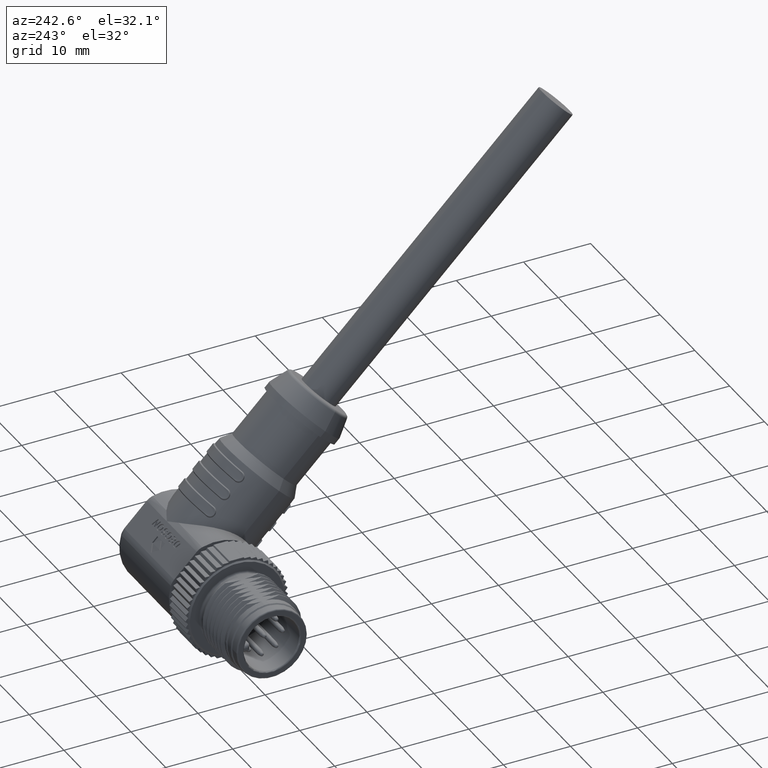
[diagram: clean part render]
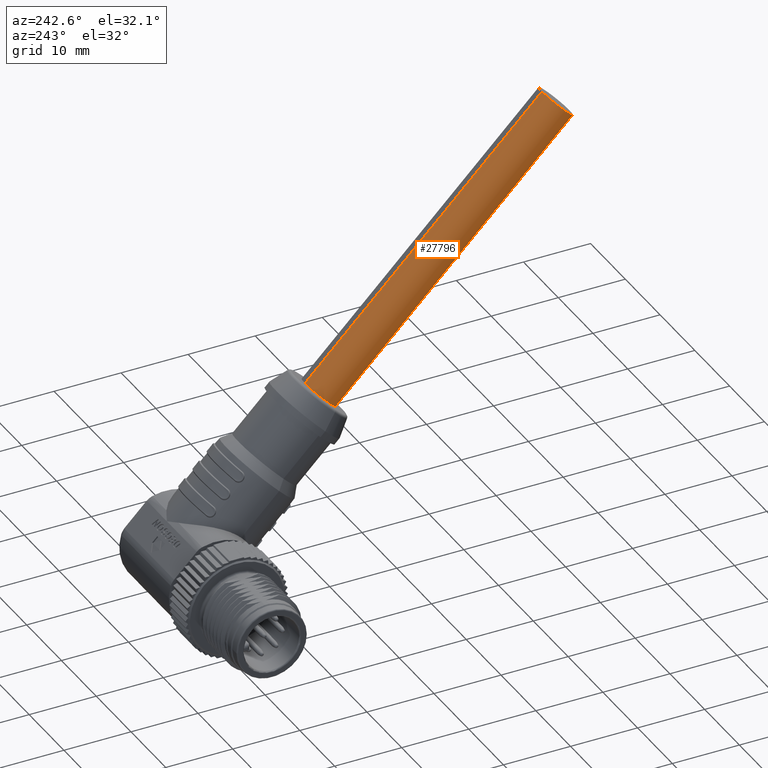
[diagram: same view with one face highlighted and labeled with its STEP entity id]
A machine part, auxiliary view. The second image highlights one B-rep face of the part: STEP entity #27796.
In plain terms, the highlighted cylindrical surface (edge-blend (fillet) strip) has radius 2.9 mm, axis along (0, -0.7071, 0.7071).
Its self-contained STEP definition (entity closure, byte-faithful):
#6009=CARTESIAN_POINT('',(2.28E1,-1.979898987322E1,1.979898987322E1));
#6010=DIRECTION('',(0.E0,-7.071067811865E-1,7.071067811865E-1));
#6011=DIRECTION('',(0.E0,7.071067811865E-1,7.071067811865E-1));
#6012=AXIS2_PLACEMENT_3D('',#6009,#6010,#6011);
#6014=DIRECTION('',(0.E0,7.071067811865E-1,-7.071067811865E-1));
#6015=VECTOR('',#6014,5.E1);
#6016=CARTESIAN_POINT('',(2.28E1,-5.310371926711E1,5.720493859799E1));
#6017=LINE('',#6016,#6015);
#6018=DIRECTION('',(0.E0,7.071067811865E-1,-7.071067811865E-1));
#6019=VECTOR('',#6018,5.E1);
#6020=CARTESIAN_POINT('',(2.28E1,-5.720493859799E1,5.310371926711E1));
#6021=LINE('',#6020,#6019);
#6027=CARTESIAN_POINT('',(2.28E1,-5.515432893255E1,5.515432893255E1));
#6028=DIRECTION('',(0.E0,7.071067811865E-1,-7.071067811865E-1));
#6029=DIRECTION('',(0.E0,-7.071067811865E-1,-7.071067811865E-1));
#6030=AXIS2_PLACEMENT_3D('',#6027,#6028,#6029);
#19835=CARTESIAN_POINT('',(2.28E1,-2.184959953866E1,1.774838020778E1));
#19836=CARTESIAN_POINT('',(2.28E1,-1.774838020778E1,2.184959953866E1));
#19837=VERTEX_POINT('',#19835);
#19838=VERTEX_POINT('',#19836);
#19839=CARTESIAN_POINT('',(2.28E1,-5.720493859799E1,5.310371926711E1));
#19840=VERTEX_POINT('',#19839);
#19841=CARTESIAN_POINT('',(2.28E1,-5.310371926711E1,5.720493859799E1));
#19842=VERTEX_POINT('',#19841);
#27784=CARTESIAN_POINT('',(2.28E1,-1.272792206136E1,1.272792206136E1));
#27785=DIRECTION('',(0.E0,-7.071067811865E-1,7.071067811865E-1));
#27786=DIRECTION('',(0.E0,-7.071067811865E-1,-7.071067811865E-1));
#27787=AXIS2_PLACEMENT_3D('',#27784,#27785,#27786);
#27788=CYLINDRICAL_SURFACE('',#27787,2.9E0);
#27789=ORIENTED_EDGE('',*,*,#27764,.F.);
#27790=ORIENTED_EDGE('',*,*,#27779,.F.);
#27792=ORIENTED_EDGE('',*,*,#27791,.F.);
#27793=ORIENTED_EDGE('',*,*,#27775,.T.);
#27794=EDGE_LOOP('',(#27789,#27790,#27792,#27793));
#27795=FACE_OUTER_BOUND('',#27794,.F.);
#27796=ADVANCED_FACE('',(#27795),#27788,.T.);
#6013=CIRCLE('',#6012,2.9E0);
#6031=CIRCLE('',#6030,2.9E0);
#27764=EDGE_CURVE('',#19838,#19837,#6013,.T.);
#27775=EDGE_CURVE('',#19840,#19837,#6021,.T.);
#27779=EDGE_CURVE('',#19842,#19838,#6017,.T.);
#27791=EDGE_CURVE('',#19840,#19842,#6031,.T.);